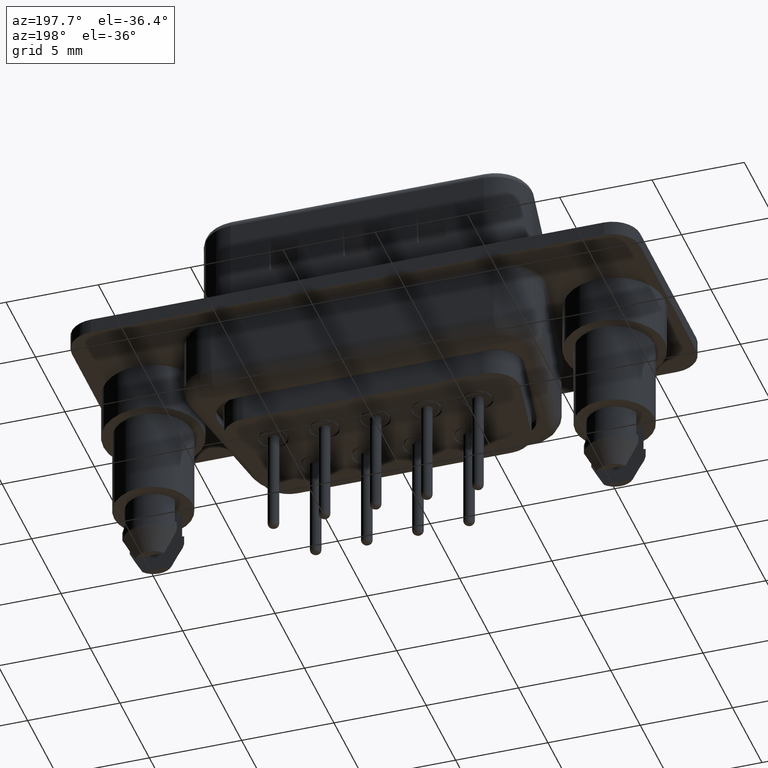
[diagram: clean part render]
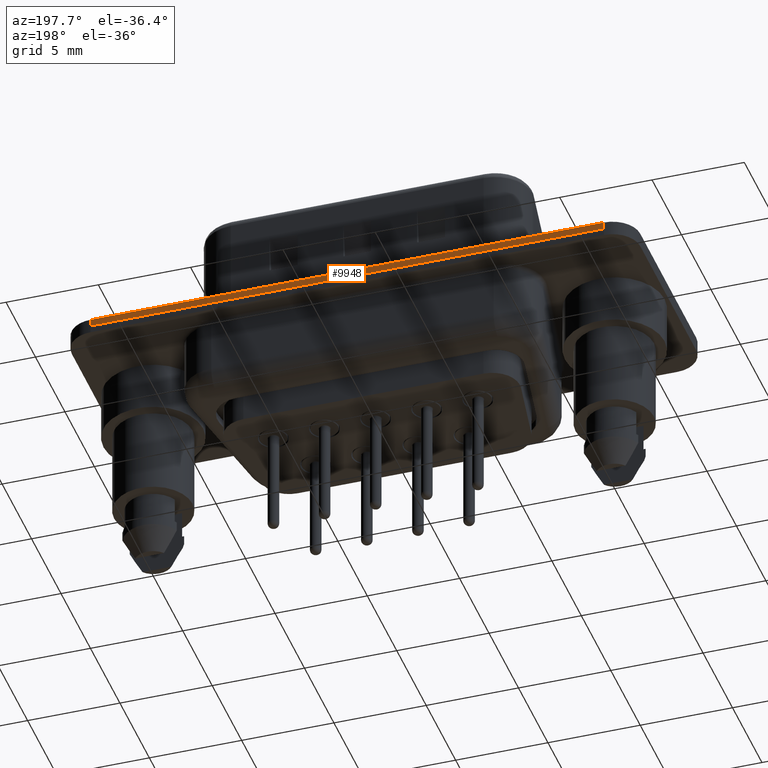
[diagram: same view with one face highlighted and labeled with its STEP entity id]
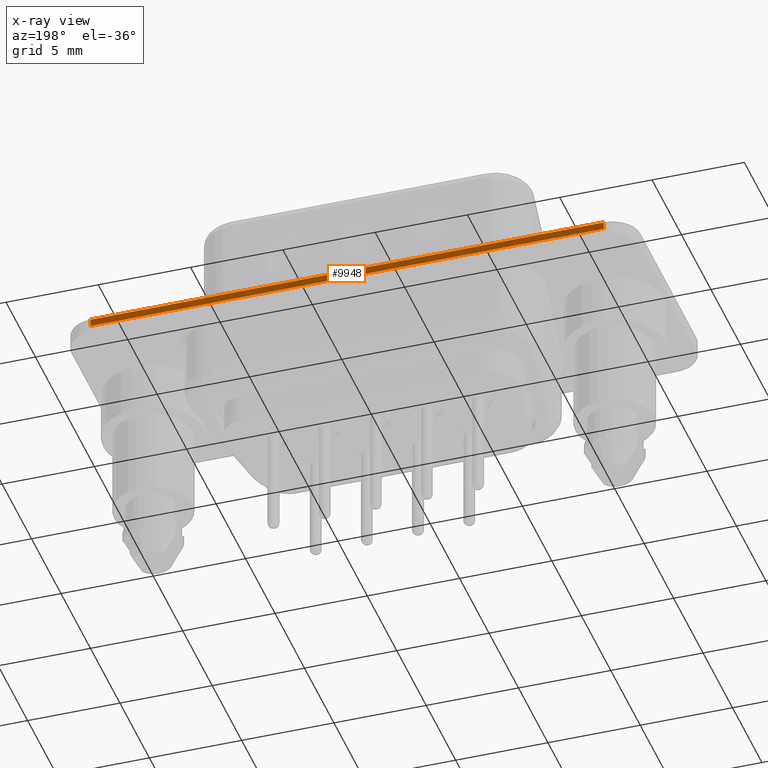
[diagram: x-ray of the same camera — body ghosted, the highlighted face saturated]
A machine part, auxiliary view. The second image highlights one B-rep face of the part: STEP entity #9948.
The next image is the same camera in x-ray: the body ghosted, the highlighted face saturated — about 0% of this face is hidden behind the body in this view.
In plain terms, the highlighted planar face has unit normal (0, -1, 0).
Its self-contained STEP definition (entity closure, byte-faithful):
#459 = CARTESIAN_POINT ( 'NONE',  ( -1.399999999999995248, 6.249999999999998224, 0.4000000000000000222 ) ) ;
#857 = VERTEX_POINT ( 'NONE', #15067 ) ;
#861 = DIRECTION ( 'NONE',  ( -1.000000000000000000, -1.248002500702738800E-16, 0.0000000000000000000 ) ) ;
#1275 = PLANE ( 'NONE',  #6596 ) ;
#1928 = VECTOR ( 'NONE', #1966, 1000.000000000000000 ) ;
#1966 = DIRECTION ( 'NONE',  ( -0.0000000000000000000, -0.0000000000000000000, -1.000000000000000000 ) ) ;
#3620 = VECTOR ( 'NONE', #6768, 1000.000000000000000 ) ;
#3974 = CARTESIAN_POINT ( 'NONE',  ( 26.40000000000000568, 6.250000000000002665, 0.4000000000000000222 ) ) ;
#4203 = VERTEX_POINT ( 'NONE', #3974 ) ;
#4518 = EDGE_LOOP ( 'NONE', ( #7268, #14427, #8193, #9566 ) ) ;
#4878 = CARTESIAN_POINT ( 'NONE',  ( 26.40000000000000568, 6.250000000000002665, 0.0000000000000000000 ) ) ;
#4972 = EDGE_CURVE ( 'NONE', #13472, #857, #11367, .T. ) ;
#6030 = LINE ( 'NONE', #10153, #10436 ) ;
#6498 = EDGE_CURVE ( 'NONE', #11383, #857, #14491, .T. ) ;
#6596 = AXIS2_PLACEMENT_3D ( 'NONE', #8434, #13091, #9599 ) ;
#6626 = EDGE_CURVE ( 'NONE', #4203, #11383, #6030, .T. ) ;
#6768 = DIRECTION ( 'NONE',  ( -1.000000000000000000, -1.248002500702738800E-16, 0.0000000000000000000 ) ) ;
#7268 = ORIENTED_EDGE ( 'NONE', *, *, #4972, .T. ) ;
#7507 = LINE ( 'NONE', #14552, #12613 ) ;
#7748 = EDGE_CURVE ( 'NONE', #4203, #13472, #7507, .T. ) ;
#7756 = CARTESIAN_POINT ( 'NONE',  ( -1.399999999999995248, 6.249999999999998224, 0.4000000000000000222 ) ) ;
#8193 = ORIENTED_EDGE ( 'NONE', *, *, #6626, .F. ) ;
#8434 = CARTESIAN_POINT ( 'NONE',  ( 26.40000000000000568, 6.250000000000002665, 0.4000000000000000222 ) ) ;
#9566 = ORIENTED_EDGE ( 'NONE', *, *, #7748, .T. ) ;
#9599 = DIRECTION ( 'NONE',  ( 1.000000000000000000, 1.248002500702738800E-16, 0.0000000000000000000 ) ) ;
#9948 = ADVANCED_FACE ( 'NONE', ( #14086 ), #1275, .F. ) ;
#10153 = CARTESIAN_POINT ( 'NONE',  ( 26.40000000000000568, 6.250000000000002665, 0.4000000000000000222 ) ) ;
#10436 = VECTOR ( 'NONE', #861, 1000.000000000000000 ) ;
#11367 = LINE ( 'NONE', #15097, #3620 ) ;
#11383 = VERTEX_POINT ( 'NONE', #459 ) ;
#12173 = DIRECTION ( 'NONE',  ( -0.0000000000000000000, -0.0000000000000000000, -1.000000000000000000 ) ) ;
#12613 = VECTOR ( 'NONE', #12173, 1000.000000000000000 ) ;
#13091 = DIRECTION ( 'NONE',  ( 1.248002500702738800E-16, -1.000000000000000000, 0.0000000000000000000 ) ) ;
#13472 = VERTEX_POINT ( 'NONE', #4878 ) ;
#14086 = FACE_OUTER_BOUND ( 'NONE', #4518, .T. ) ;
#14427 = ORIENTED_EDGE ( 'NONE', *, *, #6498, .F. ) ;
#14491 = LINE ( 'NONE', #7756, #1928 ) ;
#14552 = CARTESIAN_POINT ( 'NONE',  ( 26.40000000000000568, 6.250000000000002665, 0.4000000000000000222 ) ) ;
#15067 = CARTESIAN_POINT ( 'NONE',  ( -1.399999999999995248, 6.249999999999998224, 0.0000000000000000000 ) ) ;
#15097 = CARTESIAN_POINT ( 'NONE',  ( 26.40000000000000568, 6.250000000000002665, 0.0000000000000000000 ) ) ;